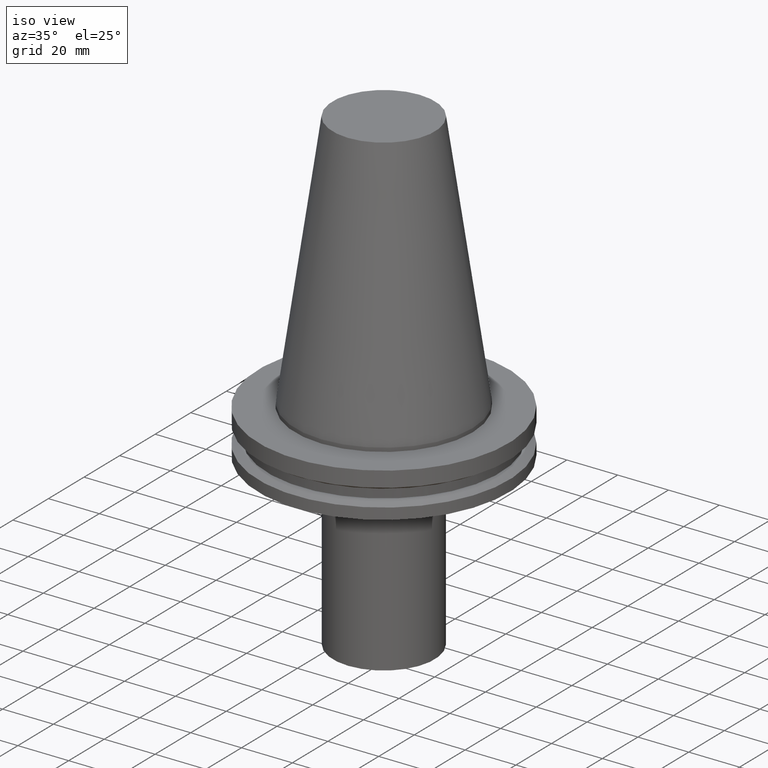
[diagram: clean part render]
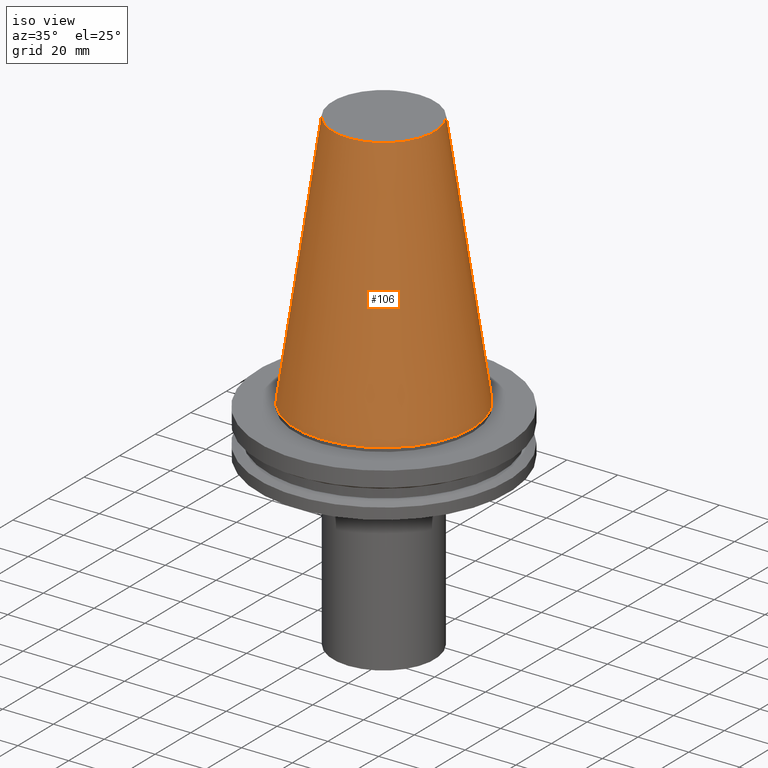
[diagram: tour spotlight — one face highlighted and labeled with its STEP entity id]
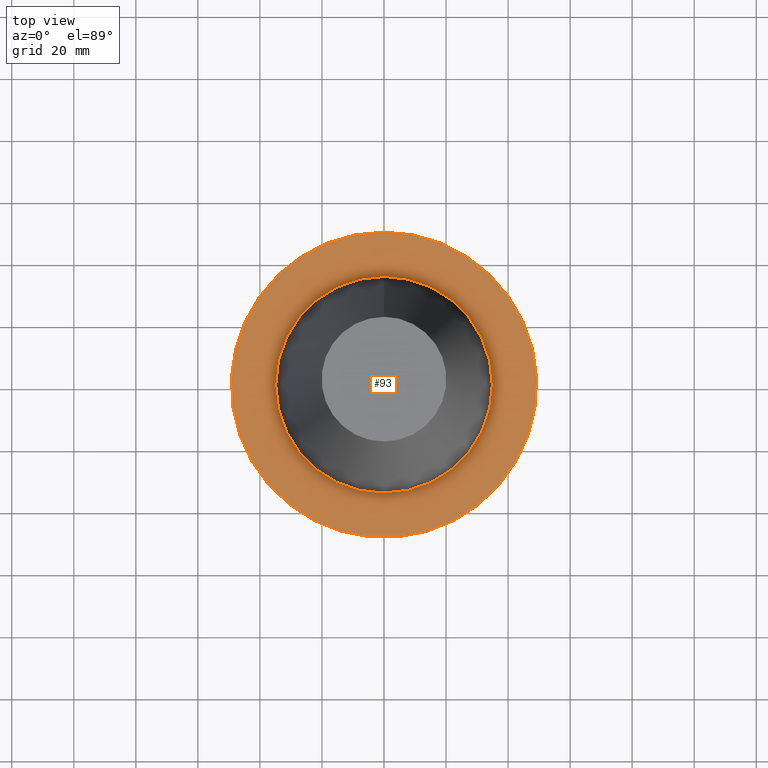
[diagram: tour spotlight — one face highlighted and labeled with its STEP entity id]
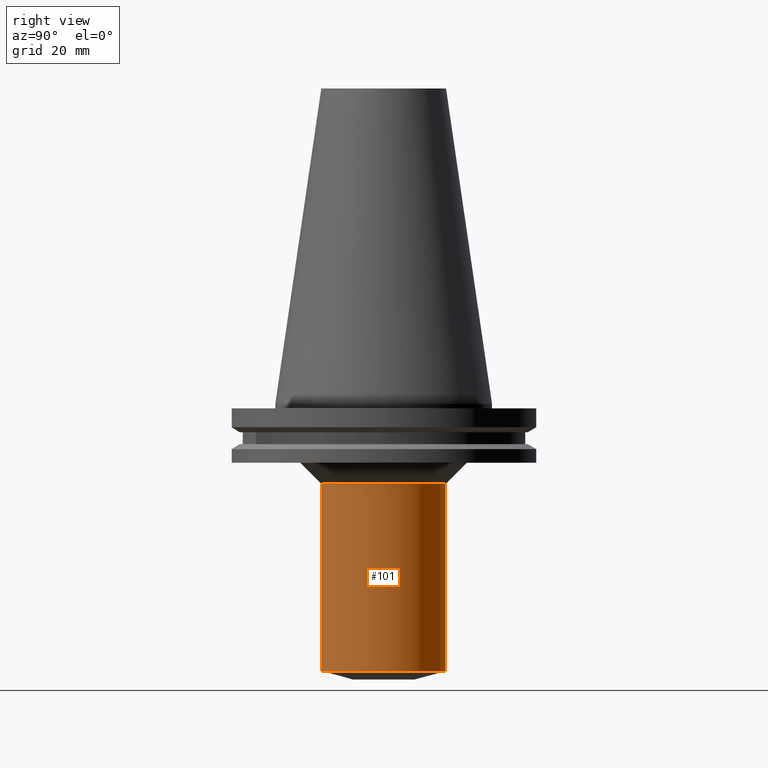
[diagram: tour spotlight — one face highlighted and labeled with its STEP entity id]
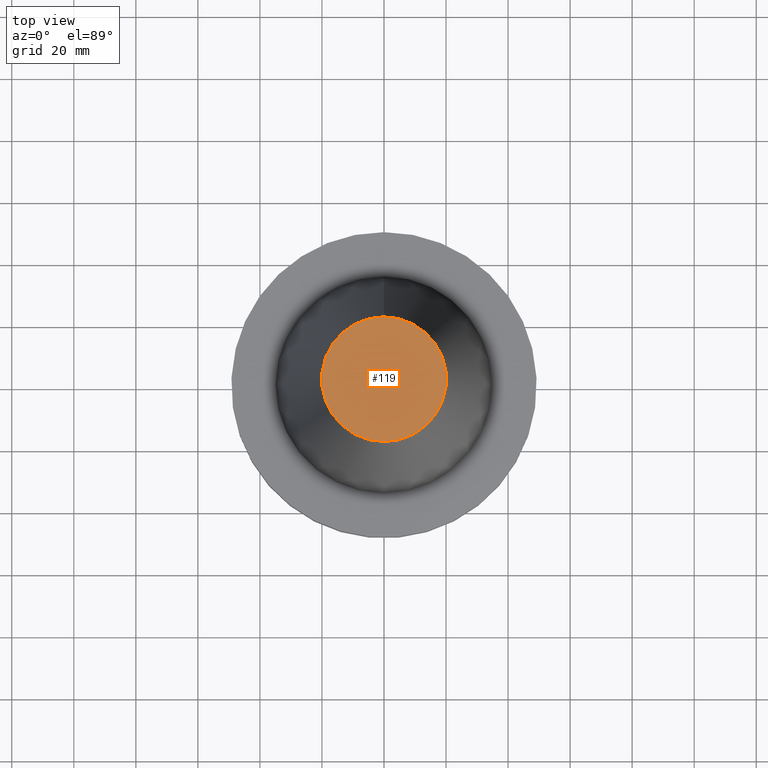
[diagram: tour spotlight — one face highlighted and labeled with its STEP entity id]
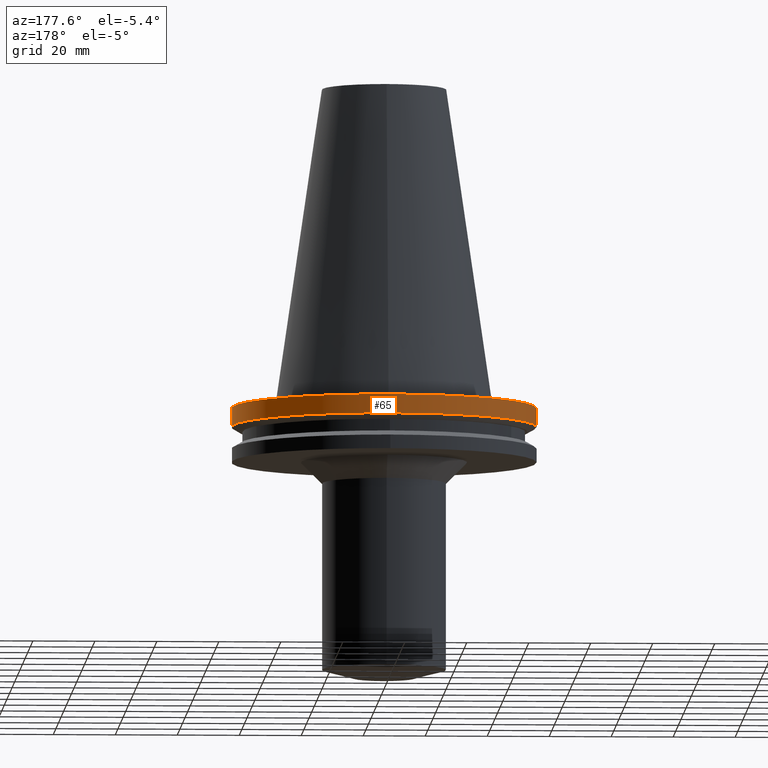
[diagram: tour spotlight — one face highlighted and labeled with its STEP entity id]
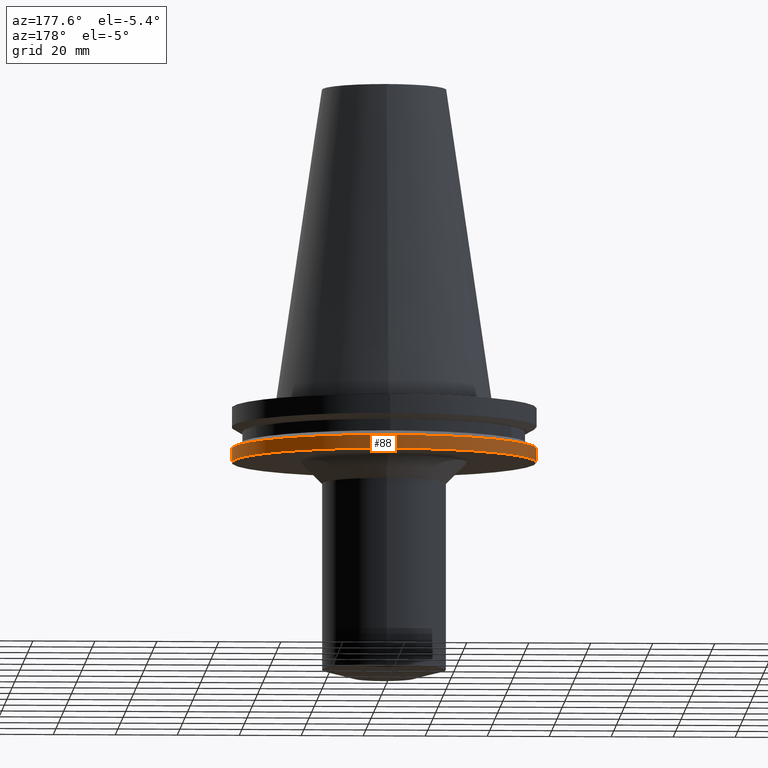
[diagram: tour spotlight — one face highlighted and labeled with its STEP entity id]
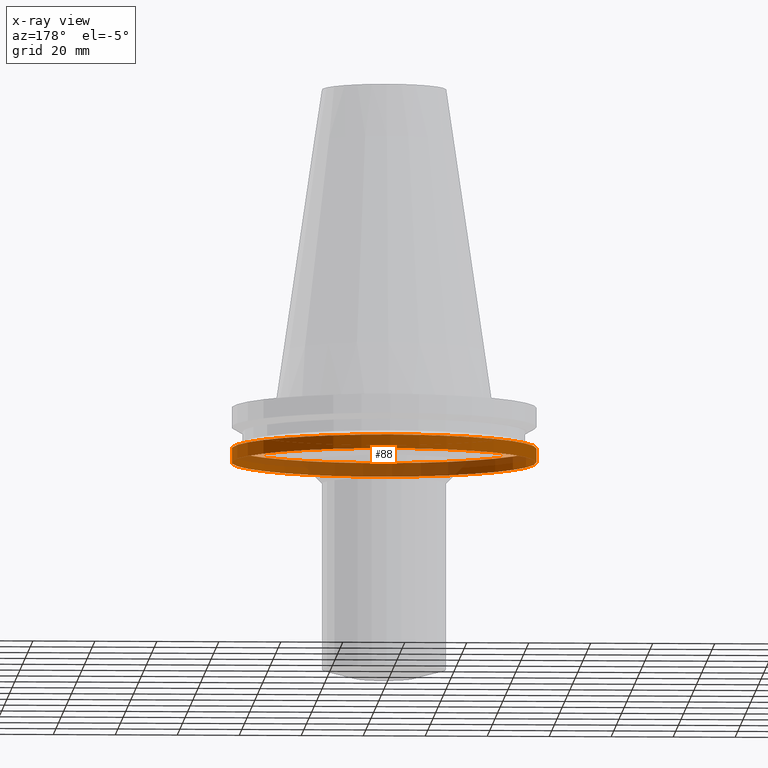
[diagram: x-ray of the same camera — body ghosted, this tour face saturated]
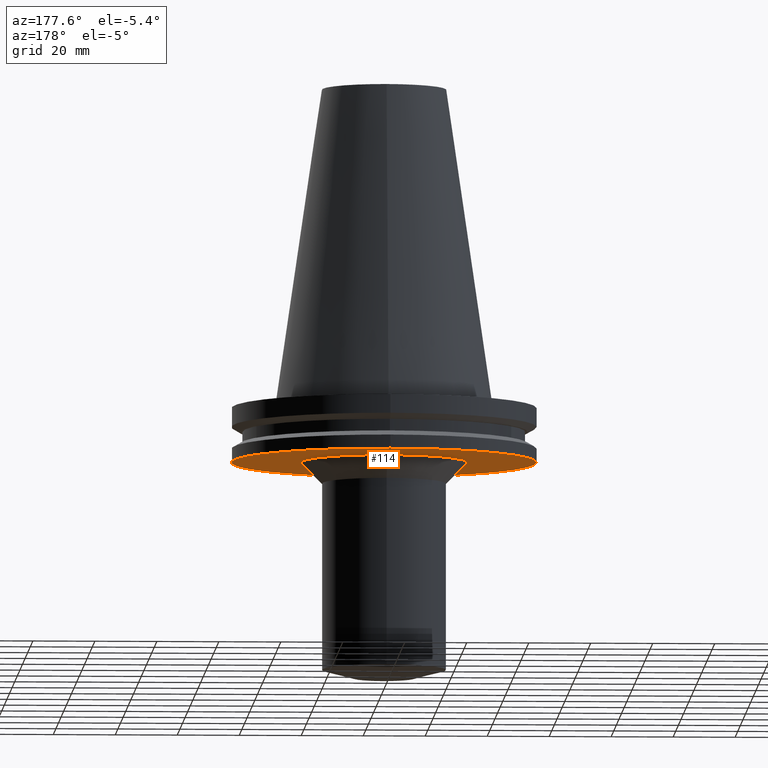
[diagram: tour spotlight — one face highlighted and labeled with its STEP entity id]
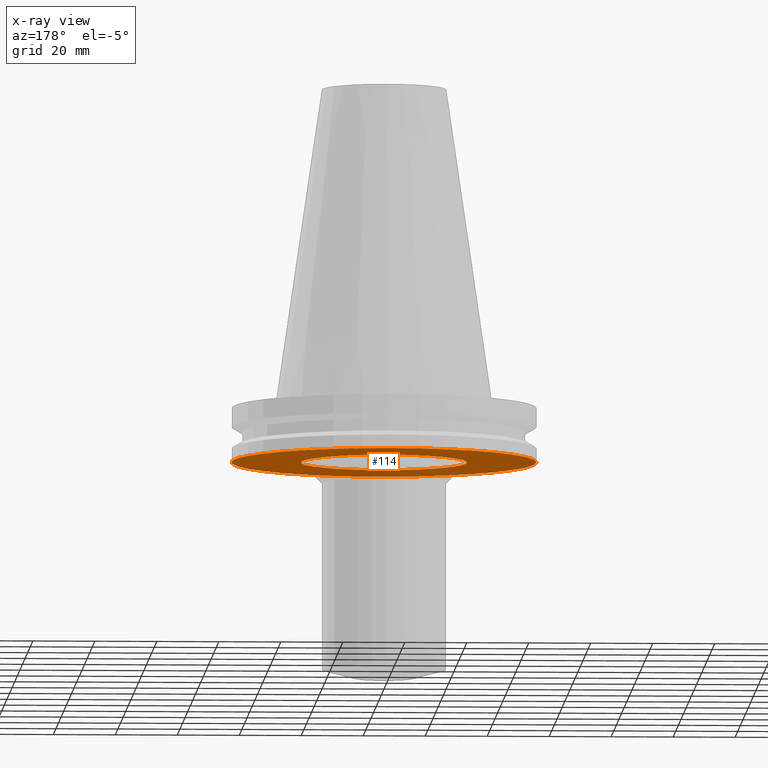
[diagram: x-ray of the same camera — body ghosted, this tour face saturated]
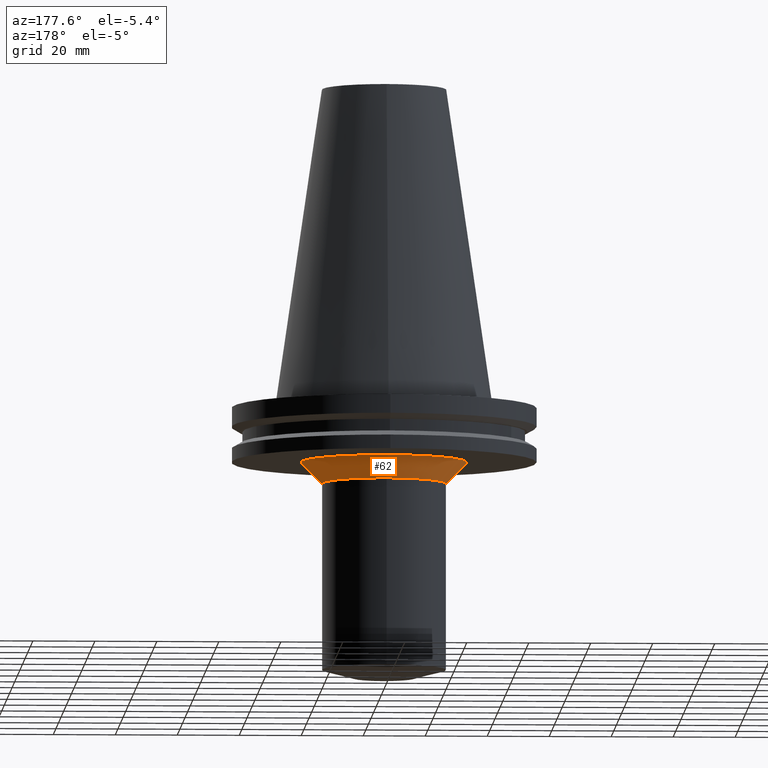
[diagram: tour spotlight — one face highlighted and labeled with its STEP entity id]
A machine part: a face-by-face anatomy tour. The part has 16 B-rep faces; the first image is the clean iso view, then the 8 largest visible faces are spotlighted one at a time (largest first), each with its STEP entity span.

Face 1 — iso view, entity #106. In plain terms, the highlighted conical surface has half-angle 8.297 deg.
Definition (entity closure, byte-faithful):
#59=EDGE_CURVE('Unnamed[1]',#158,#158,#159,.T.);
#106=ADVANCED_FACE('Unnamed[1]',(#231,#232),#233,.T.);
#129=EDGE_CURVE('Unnamed[1]',#267,#267,#268,.T.);
#158=VERTEX_POINT('',#292);
#159=CIRCLE('',#293,34.925);
#231=FACE_BOUND('',#382,.T.);
#232=FACE_BOUND('',#383,.T.);
#233=CONICAL_SURFACE('',#384,27.5166666648609,0.144812498273746);
#267=VERTEX_POINT('',#427);
#268=CIRCLE('',#428,20.1083333297217);
#292=CARTESIAN_POINT('',(-4.30483861169435E-031,34.925,4.27707894602213E-015));
#293=AXIS2_PLACEMENT_3D('',#448,#449,#450);
#382=EDGE_LOOP('',(#528));
#383=EDGE_LOOP('',(#529));
#384=AXIS2_PLACEMENT_3D('',#530,#531,#532);
#427=CARTESIAN_POINT('',(-6.22120573966855E-015,20.1083333297217,101.6));
#428=AXIS2_PLACEMENT_3D('',#570,#571,#572);
#448=CARTESIAN_POINT('',(0.0,0.0,0.0));
#449=DIRECTION('',(6.12323399573677E-017,1.22464679914735E-016,-1.0));
#450=DIRECTION('',(-1.23259516440783E-032,1.0,1.22464679914735E-016));
#528=ORIENTED_EDGE('',*,*,#59,.F.);
#529=ORIENTED_EDGE('',*,*,#129,.T.);
#530=CARTESIAN_POINT('',(-3.11060286983428E-015,-6.22120573966855E-015,50.8));
#531=DIRECTION('',(6.12323399573677E-017,1.22464679914735E-016,-1.0));
#532=DIRECTION('',(-1.23259516440783E-032,1.0,1.22464679914735E-016));
#570=CARTESIAN_POINT('',(-6.22120573966855E-015,-1.24424114793371E-014,101.6));
#571=DIRECTION('',(6.12323399573676E-017,1.22464679914735E-016,-1.0));
#572=DIRECTION('',(-1.23259516440783E-032,1.0,1.22464679914735E-016));

Face 2 — top view, entity #93. In plain terms, the highlighted planar face has unit normal (-0, -0, 1).
Definition (entity closure, byte-faithful):
#93=ADVANCED_FACE('Unnamed[1]',(#210,#211),#212,.T.);
#103=EDGE_CURVE('Unnamed[1]',#227,#227,#228,.T.);
#131=EDGE_CURVE('Unnamed[1]',#270,#270,#271,.T.);
#210=FACE_OUTER_BOUND('',#356,.T.);
#211=FACE_BOUND('',#357,.T.);
#212=PLANE('',#358);
#227=VERTEX_POINT('',#377);
#228=CIRCLE('',#378,49.2125);
#270=VERTEX_POINT('',#431);
#271=CIRCLE('',#432,34.925);
#356=EDGE_LOOP('',(#504));
#357=EDGE_LOOP('',(#505));
#358=AXIS2_PLACEMENT_3D('',#506,#507,#508);
#377=CARTESIAN_POINT('',(9.18485099360509E-017,49.2125,-1.49999999999999));
#378=AXIS2_PLACEMENT_3D('',#524,#525,#526);
#431=CARTESIAN_POINT('',(9.18485099360511E-017,34.925,-1.5));
#432=AXIS2_PLACEMENT_3D('',#573,#574,#575);
#504=ORIENTED_EDGE('',*,*,#103,.F.);
#505=ORIENTED_EDGE('',*,*,#131,.T.);
#506=CARTESIAN_POINT('',(9.1848509936051E-017,42.06875,-1.49999999999999));
#507=DIRECTION('',(-6.12323399573677E-017,-1.22464679914735E-016,1.0));
#508=DIRECTION('',(1.23259516440783E-032,-1.0,-1.22464679914735E-016));
#524=CARTESIAN_POINT('',(9.18485099360515E-017,1.83697019872103E-016,-1.5));
#525=DIRECTION('',(6.12323399573677E-017,1.22464679914735E-016,-1.0));
#526=DIRECTION('',(-1.23259516440783E-032,1.0,1.22464679914735E-016));
#573=CARTESIAN_POINT('',(9.18485099360515E-017,1.83697019872103E-016,-1.5));
#574=DIRECTION('',(6.12323399573677E-017,1.22464679914735E-016,-1.0));
#575=DIRECTION('',(-1.23259516440783E-032,1.0,1.22464679914735E-016));

Face 3 — right view, entity #101. In plain terms, the highlighted cylindrical surface (bore or boss wall) has radius 20 mm, axis along (0, 0, -1).
Definition (entity closure, byte-faithful):
#67=EDGE_CURVE('Unnamed[1]',#171,#171,#172,.T.);
#101=ADVANCED_FACE('Unnamed[1]',(#223,#224),#225,.T.);
#133=EDGE_CURVE('Unnamed[1]',#273,#273,#274,.T.);
#171=VERTEX_POINT('',#308);
#172=CIRCLE('',#309,19.9999999999964);
#223=FACE_BOUND('',#372,.T.);
#224=FACE_BOUND('',#373,.T.);
#225=CYLINDRICAL_SURFACE('',#374,19.9999999999957);
#273=VERTEX_POINT('',#435);
#274=CIRCLE('',#436,19.999999999995);
#308=CARTESIAN_POINT('',(5.27948346178746E-015,19.9999999999964,-86.2205080756875));
#309=AXIS2_PLACEMENT_3D('',#463,#464,#465);
#372=EDGE_LOOP('',(#519));
#373=EDGE_LOOP('',(#520));
#374=AXIS2_PLACEMENT_3D('',#521,#522,#523);
#435=CARTESIAN_POINT('',(1.58591760489546E-015,19.999999999995,-25.899999999994));
#436=AXIS2_PLACEMENT_3D('',#576,#577,#578);
#463=CARTESIAN_POINT('',(5.27948346178746E-015,1.05589669235749E-014,-86.2205080756875));
#464=DIRECTION('',(6.12323399573676E-017,1.22464679914735E-016,-1.0));
#465=DIRECTION('',(-1.23259516440783E-032,1.0,1.22464679914735E-016));
#519=ORIENTED_EDGE('',*,*,#67,.F.);
#520=ORIENTED_EDGE('',*,*,#133,.T.);
#521=CARTESIAN_POINT('',(3.43270053334146E-015,6.86540106668292E-015,-56.0602540378408));
#522=DIRECTION('',(6.12323399573677E-017,1.22464679914735E-016,-1.0));
#523=DIRECTION('',(-1.23259516440783E-032,1.0,1.22464679914735E-016));
#576=CARTESIAN_POINT('',(1.58591760489546E-015,3.17183520979091E-015,-25.899999999994));
#577=DIRECTION('',(6.12323399573677E-017,1.22464679914735E-016,-1.0));
#578=DIRECTION('',(-1.23259516440783E-032,1.0,1.22464679914735E-016));

Face 4 — top view, entity #119. In plain terms, the highlighted planar face has unit normal (-0, -0, 1).
Definition (entity closure, byte-faithful):
#119=ADVANCED_FACE('Unnamed[1]',(#252),#253,.T.);
#129=EDGE_CURVE('Unnamed[1]',#267,#267,#268,.T.);
#252=FACE_OUTER_BOUND('',#408,.T.);
#253=PLANE('',#409);
#267=VERTEX_POINT('',#427);
#268=CIRCLE('',#428,20.1083333297217);
#408=EDGE_LOOP('',(#552));
#409=AXIS2_PLACEMENT_3D('',#553,#554,#555);
#427=CARTESIAN_POINT('',(-6.22120573966855E-015,20.1083333297217,101.6));
#428=AXIS2_PLACEMENT_3D('',#570,#571,#572);
#552=ORIENTED_EDGE('',*,*,#129,.F.);
#553=CARTESIAN_POINT('',(-6.22120573966855E-015,10.0541666648608,101.6));
#554=DIRECTION('',(-6.12323399573677E-017,-1.22464679914735E-016,1.0));
#555=DIRECTION('',(1.23259516440783E-032,-1.0,-1.22464679914735E-016));
#570=CARTESIAN_POINT('',(-6.22120573966855E-015,-1.24424114793371E-014,101.6));
#571=DIRECTION('',(6.12323399573676E-017,1.22464679914735E-016,-1.0));
#572=DIRECTION('',(-1.23259516440783E-032,1.0,1.22464679914735E-016));

Face 5 — auxiliary view, entity #65. In plain terms, the highlighted cylindrical surface (bore or boss wall) has radius 49.2125 mm, axis along (0, 0, -1).
Definition (entity closure, byte-faithful):
#65=ADVANCED_FACE('Unnamed[1]',(#167,#168),#169,.T.);
#95=EDGE_CURVE('Unnamed[1]',#214,#214,#215,.T.);
#103=EDGE_CURVE('Unnamed[1]',#227,#227,#228,.T.);
#167=FACE_BOUND('',#303,.T.);
#168=FACE_BOUND('',#304,.T.);
#169=CYLINDRICAL_SURFACE('',#305,49.2125);
#214=VERTEX_POINT('',#361);
#215=CIRCLE('',#362,49.2125);
#227=VERTEX_POINT('',#377);
#228=CIRCLE('',#378,49.2125);
#303=EDGE_LOOP('',(#458));
#304=EDGE_LOOP('',(#459));
#305=AXIS2_PLACEMENT_3D('',#460,#461,#462);
#361=CARTESIAN_POINT('',(4.64988177918915E-016,49.2125,-7.59383323));
#362=AXIS2_PLACEMENT_3D('',#509,#510,#511);
#377=CARTESIAN_POINT('',(9.18485099360509E-017,49.2125,-1.49999999999999));
#378=AXIS2_PLACEMENT_3D('',#524,#525,#526);
#458=ORIENTED_EDGE('',*,*,#95,.F.);
#459=ORIENTED_EDGE('',*,*,#103,.T.);
#460=CARTESIAN_POINT('',(2.78418343927483E-016,5.56836687854967E-016,-4.546916615));
#461=DIRECTION('',(6.12323399573677E-017,1.22464679914735E-016,-1.0));
#462=DIRECTION('',(-1.23259516440783E-032,1.0,1.22464679914735E-016));
#509=CARTESIAN_POINT('',(4.64988177918915E-016,9.29976355837831E-016,-7.59383323));
#510=DIRECTION('',(6.12323399573677E-017,1.22464679914735E-016,-1.0));
#511=DIRECTION('',(-1.23259516440783E-032,1.0,1.22464679914735E-016));
#524=CARTESIAN_POINT('',(9.18485099360515E-017,1.83697019872103E-016,-1.5));
#525=DIRECTION('',(6.12323399573677E-017,1.22464679914735E-016,-1.0));
#526=DIRECTION('',(-1.23259516440783E-032,1.0,1.22464679914735E-016));

Face 6 — auxiliary view, entity #88. An x-ray twin of the same camera follows (body ghosted, this face saturated) — the face is partly hidden behind the body. In plain terms, the highlighted cylindrical surface (bore or boss wall) has radius 49.2125 mm, axis along (0, 0, -1).
Definition (entity closure, byte-faithful):
#82=EDGE_CURVE('Unnamed[1]',#193,#193,#194,.T.);
#88=ADVANCED_FACE('Unnamed[1]',(#202,#203),#204,.T.);
#124=EDGE_CURVE('Unnamed[1]',#260,#260,#261,.T.);
#193=VERTEX_POINT('',#335);
#194=CIRCLE('',#336,49.2125);
#202=FACE_BOUND('',#346,.T.);
#203=FACE_BOUND('',#347,.T.);
#204=CYLINDRICAL_SURFACE('',#348,49.2125);
#260=VERTEX_POINT('',#418);
#261=CIRCLE('',#419,49.2125);
#335=CARTESIAN_POINT('',(1.16647607618785E-015,49.2125,-19.05));
#336=AXIS2_PLACEMENT_3D('',#485,#486,#487);
#346=EDGE_LOOP('',(#495));
#347=EDGE_LOOP('',(#496));
#348=AXIS2_PLACEMENT_3D('',#497,#498,#499);
#418=CARTESIAN_POINT('',(8.96819062732941E-016,49.2125,-14.64616677));
#419=AXIS2_PLACEMENT_3D('',#562,#563,#564);
#485=CARTESIAN_POINT('',(1.16647607618785E-015,2.33295215237571E-015,-19.05));
#486=DIRECTION('',(6.12323399573677E-017,1.22464679914735E-016,-1.0));
#487=DIRECTION('',(-1.23259516440783E-032,1.0,1.22464679914735E-016));
#495=ORIENTED_EDGE('',*,*,#82,.F.);
#496=ORIENTED_EDGE('',*,*,#124,.T.);
#497=CARTESIAN_POINT('',(1.0316475694604E-015,2.0632951389208E-015,-16.848083385));
#498=DIRECTION('',(6.12323399573677E-017,1.22464679914735E-016,-1.0));
#499=DIRECTION('',(-1.23259516440783E-032,1.0,1.22464679914735E-016));
#562=CARTESIAN_POINT('',(8.96819062732942E-016,1.79363812546588E-015,-14.64616677));
#563=DIRECTION('',(6.12323399573677E-017,1.22464679914735E-016,-1.0));
#564=DIRECTION('',(-1.23259516440783E-032,1.0,1.22464679914735E-016));

Face 7 — auxiliary view, entity #114. An x-ray twin of the same camera follows (body ghosted, this face saturated) — the face is partly hidden behind the body. In plain terms, the highlighted planar face has unit normal (0, 0, -1).
Definition (entity closure, byte-faithful):
#77=EDGE_CURVE('Unnamed[1]',#187,#187,#188,.T.);
#82=EDGE_CURVE('Unnamed[1]',#193,#193,#194,.T.);
#114=ADVANCED_FACE('Unnamed[1]',(#244,#245),#246,.T.);
#187=VERTEX_POINT('',#328);
#188=CIRCLE('',#329,26.8499999999889);
#193=VERTEX_POINT('',#335);
#194=CIRCLE('',#336,49.2125);
#244=FACE_BOUND('',#398,.T.);
#245=FACE_OUTER_BOUND('',#399,.T.);
#246=PLANE('',#400);
#328=CARTESIAN_POINT('',(1.16647607618786E-015,26.8499999999889,-19.0500000000002));
#329=AXIS2_PLACEMENT_3D('',#481,#482,#483);
#335=CARTESIAN_POINT('',(1.16647607618785E-015,49.2125,-19.05));
#336=AXIS2_PLACEMENT_3D('',#485,#486,#487);
#398=EDGE_LOOP('',(#543));
#399=EDGE_LOOP('',(#544));
#400=AXIS2_PLACEMENT_3D('',#545,#546,#547);
#481=CARTESIAN_POINT('',(1.16647607618786E-015,2.33295215237573E-015,-19.0500000000002));
#482=DIRECTION('',(6.12323399573677E-017,1.22464679914735E-016,-1.0));
#483=DIRECTION('',(-1.23259516440783E-032,1.0,1.22464679914735E-016));
#485=CARTESIAN_POINT('',(1.16647607618785E-015,2.33295215237571E-015,-19.05));
#486=DIRECTION('',(6.12323399573677E-017,1.22464679914735E-016,-1.0));
#487=DIRECTION('',(-1.23259516440783E-032,1.0,1.22464679914735E-016));
#543=ORIENTED_EDGE('',*,*,#77,.F.);
#544=ORIENTED_EDGE('',*,*,#82,.T.);
#545=CARTESIAN_POINT('',(1.16647607618786E-015,38.0312499999944,-19.0500000000001));
#546=DIRECTION('',(6.12323399573677E-017,6.79497332204094E-015,-1.0));
#547=DIRECTION('',(-4.20899269187224E-031,1.0,6.79497332204094E-015));

Face 8 — auxiliary view, entity #62. In plain terms, the highlighted conical surface has half-angle 45 deg.
Definition (entity closure, byte-faithful):
#62=ADVANCED_FACE('Unnamed[1]',(#162,#163),#164,.T.);
#77=EDGE_CURVE('Unnamed[1]',#187,#187,#188,.T.);
#133=EDGE_CURVE('Unnamed[1]',#273,#273,#274,.T.);
#162=FACE_BOUND('',#297,.T.);
#163=FACE_BOUND('',#298,.T.);
#164=CONICAL_SURFACE('',#299,23.424999999992,0.785398163397448);
#187=VERTEX_POINT('',#328);
#188=CIRCLE('',#329,26.8499999999889);
#273=VERTEX_POINT('',#435);
#274=CIRCLE('',#436,19.999999999995);
#297=EDGE_LOOP('',(#452));
#298=EDGE_LOOP('',(#453));
#299=AXIS2_PLACEMENT_3D('',#454,#455,#456);
#328=CARTESIAN_POINT('',(1.16647607618786E-015,26.8499999999889,-19.0500000000002));
#329=AXIS2_PLACEMENT_3D('',#481,#482,#483);
#435=CARTESIAN_POINT('',(1.58591760489546E-015,19.999999999995,-25.899999999994));
#436=AXIS2_PLACEMENT_3D('',#576,#577,#578);
#452=ORIENTED_EDGE('',*,*,#133,.F.);
#453=ORIENTED_EDGE('',*,*,#77,.T.);
#454=CARTESIAN_POINT('',(1.37619684054166E-015,2.75239368108332E-015,-22.4749999999971));
#455=DIRECTION('',(-6.12323399573677E-017,-1.22464679914735E-016,1.0));
#456=DIRECTION('',(-1.23259516440783E-032,1.0,1.22464679914735E-016));
#481=CARTESIAN_POINT('',(1.16647607618786E-015,2.33295215237573E-015,-19.0500000000002));
#482=DIRECTION('',(6.12323399573677E-017,1.22464679914735E-016,-1.0));
#483=DIRECTION('',(-1.23259516440783E-032,1.0,1.22464679914735E-016));
#576=CARTESIAN_POINT('',(1.58591760489546E-015,3.17183520979091E-015,-25.899999999994));
#577=DIRECTION('',(6.12323399573677E-017,1.22464679914735E-016,-1.0));
#578=DIRECTION('',(-1.23259516440783E-032,1.0,1.22464679914735E-016));